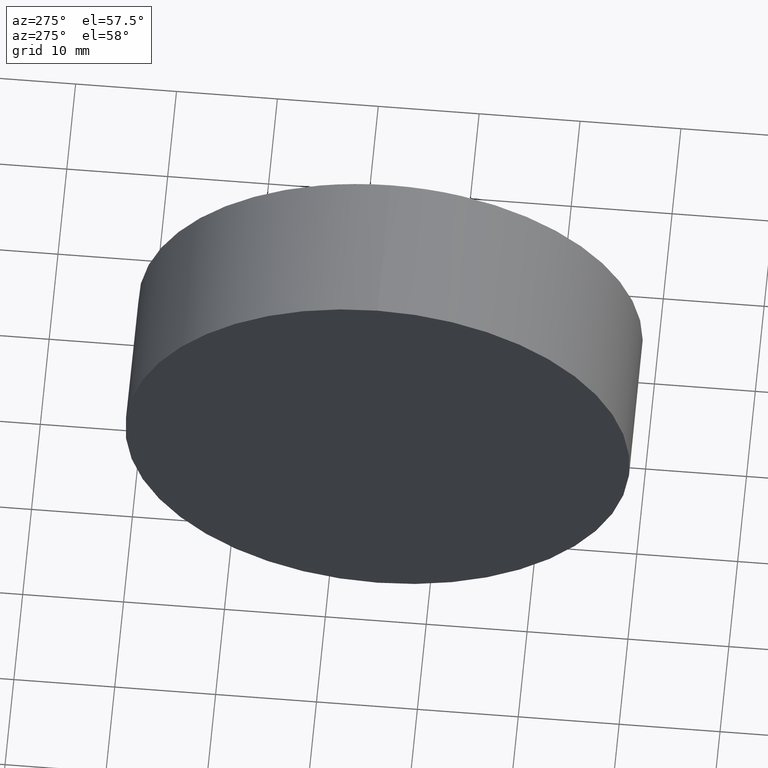
[diagram: clean part render]
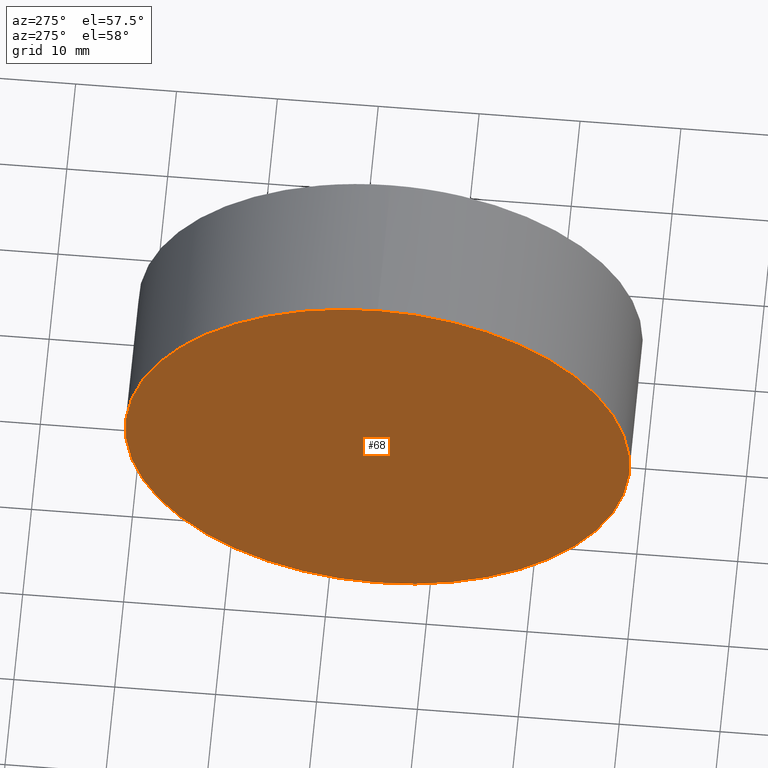
[diagram: same view with one face highlighted and labeled with its STEP entity id]
A machine part, auxiliary view. The second image highlights one B-rep face of the part: STEP entity #68.
In plain terms, the highlighted planar face has unit normal (1, 0, 0).
Its self-contained STEP definition (entity closure, byte-faithful):
#20 = DIRECTION ( 'NONE',  ( 0.0000000000000000000, 0.0000000000000000000, 1.000000000000000000 ) ) ;
#27 = FACE_OUTER_BOUND ( 'NONE', #37, .T. ) ;
#37 = EDGE_LOOP ( 'NONE', ( #43, #85 ) ) ;
#38 = DIRECTION ( 'NONE',  ( 1.000000000000000000, 0.0000000000000000000, 0.0000000000000000000 ) ) ;
#43 = ORIENTED_EDGE ( 'NONE', *, *, #88, .T. ) ;
#44 = EDGE_CURVE ( 'NONE', #148, #185, #142, .T. ) ;
#49 = AXIS2_PLACEMENT_3D ( 'NONE', #127, #38, #128 ) ;
#54 = AXIS2_PLACEMENT_3D ( 'NONE', #141, #139, #143 ) ;
#58 = CARTESIAN_POINT ( 'NONE',  ( 113.7394371346435000, 65.15563045701519200, 0.0000000000000000000 ) ) ;
#68 = ADVANCED_FACE ( 'NONE', ( #27 ), #156, .F. ) ;
#85 = ORIENTED_EDGE ( 'NONE', *, *, #44, .T. ) ;
#88 = EDGE_CURVE ( 'NONE', #185, #148, #117, .T. ) ;
#100 = AXIS2_PLACEMENT_3D ( 'NONE', #58, #175, #20 ) ;
#114 = CARTESIAN_POINT ( 'NONE',  ( 113.7394371346435000, 65.15563045701519200, -24.99999999999999300 ) ) ;
#115 = CARTESIAN_POINT ( 'NONE',  ( 113.7394371346435000, 65.15563045701519200, 24.99999999999999300 ) ) ;
#117 = CIRCLE ( 'NONE', #54, 24.99999999999999300 ) ;
#127 = CARTESIAN_POINT ( 'NONE',  ( 113.7394371346435000, 65.15563045701519200, 0.0000000000000000000 ) ) ;
#128 = DIRECTION ( 'NONE',  ( 0.0000000000000000000, 0.0000000000000000000, -1.000000000000000000 ) ) ;
#139 = DIRECTION ( 'NONE',  ( -1.000000000000000000, -0.0000000000000000000, -0.0000000000000000000 ) ) ;
#141 = CARTESIAN_POINT ( 'NONE',  ( 113.7394371346435000, 65.15563045701519200, 0.0000000000000000000 ) ) ;
#142 = CIRCLE ( 'NONE', #100, 24.99999999999999300 ) ;
#143 = DIRECTION ( 'NONE',  ( 0.0000000000000000000, 0.0000000000000000000, 1.000000000000000000 ) ) ;
#148 = VERTEX_POINT ( 'NONE', #114 ) ;
#156 = PLANE ( 'NONE',  #49 ) ;
#175 = DIRECTION ( 'NONE',  ( -1.000000000000000000, -0.0000000000000000000, -0.0000000000000000000 ) ) ;
#185 = VERTEX_POINT ( 'NONE', #115 ) ;